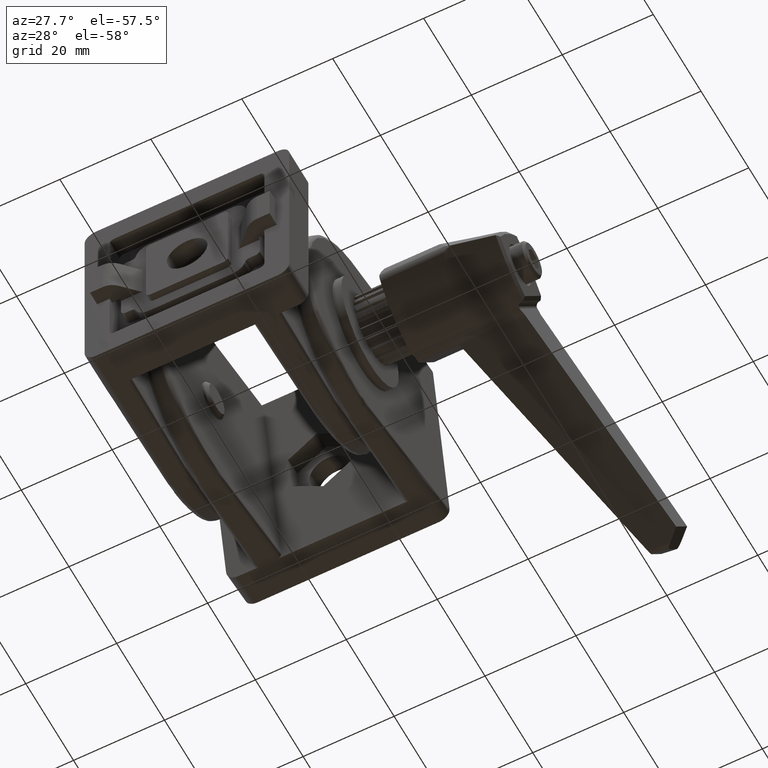
[diagram: clean part render]
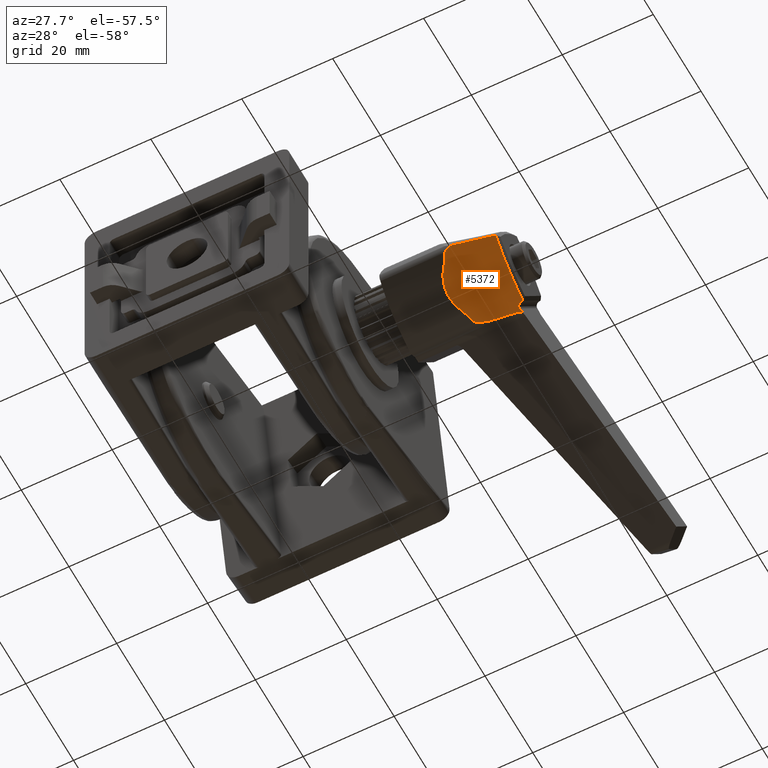
[diagram: same view with one face highlighted and labeled with its STEP entity id]
A machine part, auxiliary view. The second image highlights one B-rep face of the part: STEP entity #5372.
In plain terms, the highlighted conical surface has half-angle 12 deg.
Its self-contained STEP definition (entity closure, byte-faithful):
#477=LINE('',#9918,#908);
#908=VECTOR('',#7276,0.0146319005266277);
#1099=CONICAL_SURFACE('',#5898,33.99,12.0000000000001);
#1172=ELLIPSE('',#5896,31.8731235747589,31.0202850800713);
#1174=ELLIPSE('',#5901,38.5203805296889,29.4891679345241);
#1533=FACE_OUTER_BOUND('',#1862,.T.);
#1862=EDGE_LOOP('',(#4874,#4875,#4876,#4877,#4878,#4879,#4880,#4881,#4882,
#4883,#4884,#4885,#4886,#4887));
#1975=(
BOUNDED_CURVE()
B_SPLINE_CURVE(2,(#10073,#10074,#10075),.UNSPECIFIED.,.F.,.F.)
B_SPLINE_CURVE_WITH_KNOTS((3,3),(1.53763830239144,1.88072087559455),
 .UNSPECIFIED.)
CURVE()
GEOMETRIC_REPRESENTATION_ITEM()
RATIONAL_B_SPLINE_CURVE((1.04654044827924,1.04884496566682,1.04986089987338))
REPRESENTATION_ITEM('')
);
#1976=(
BOUNDED_CURVE()
B_SPLINE_CURVE(2,(#10092,#10093,#10094),.UNSPECIFIED.,.F.,.F.)
B_SPLINE_CURVE_WITH_KNOTS((3,3),(2.42170158514446,2.76478415834744),
 .UNSPECIFIED.)
CURVE()
GEOMETRIC_REPRESENTATION_ITEM()
RATIONAL_B_SPLINE_CURVE((1.04986089987338,1.04884496566682,1.04654044827924))
REPRESENTATION_ITEM('')
);
#2200=CIRCLE('',#5899,30.3068748348297);
#2201=CIRCLE('',#5900,1611.64966540959);
#2235=B_SPLINE_CURVE_WITH_KNOTS('',3,(#10021,#10022,#10023,#10024,#10025,
#10026,#10027,#10028,#10029,#10030,#10031,#10032),.UNSPECIFIED.,.F.,.F.,
(4,2,2,2,2,4),(0.127745565673378,0.14327594049104,0.177998647508925,0.21272135452681,
0.247048233733336,0.2672710280666),.UNSPECIFIED.);
#2236=B_SPLINE_CURVE_WITH_KNOTS('',3,(#10037,#10038,#10039,#10040),
 .UNSPECIFIED.,.F.,.F.,(4,4),(2.0715044188612E-7,0.00053614271093249),
 .UNSPECIFIED.);
#2237=B_SPLINE_CURVE_WITH_KNOTS('',3,(#10057,#10058,#10059,#10060),
 .UNSPECIFIED.,.F.,.F.,(4,4),(-1.90518107225298,-1.08168540035583),
 .UNSPECIFIED.);
#2238=B_SPLINE_CURVE_WITH_KNOTS('',3,(#10062,#10063,#10064,#10065,#10066,
#10067,#10068,#10069,#10070,#10071),.UNSPECIFIED.,.F.,.F.,(4,2,2,2,4),(-1.0140742382486,
-1.00783335760039,-0.989094278958693,-0.9516161216753,-0.838162052898651),
 .UNSPECIFIED.);
#2239=B_SPLINE_CURVE_WITH_KNOTS('',3,(#10077,#10078,#10079,#10080,#10081,
#10082,#10083,#10084,#10085,#10086,#10087,#10088,#10089,#10090),
 .UNSPECIFIED.,.F.,.F.,(4,2,2,2,2,2,4),(-3.65799650815023,-3.59657656243432,
-3.36478179025589,-3.13298701807746,-2.90119224589903,-2.6693974737206,
-2.60797752800479),.UNSPECIFIED.);
#2240=B_SPLINE_CURVE_WITH_KNOTS('',3,(#10096,#10097,#10098,#10099,#10100,
#10101,#10102,#10103,#10104,#10105,#10106,#10107,#10108,#10109),
 .UNSPECIFIED.,.F.,.F.,(4,2,2,2,2,2,4),(-1.55089683986106,-1.36269491528464,
-1.23211183304676,-1.10152875080887,-1.06405059352548,-1.04531151488378,
-1.03907063423557),.UNSPECIFIED.);
#2241=B_SPLINE_CURVE_WITH_KNOTS('',3,(#10112,#10113,#10114,#10115,#10116,
#10117,#10118,#10119),.UNSPECIFIED.,.F.,.F.,(4,2,2,4),(0.359268737981897,
0.435645626085089,0.580860834780119,0.611465302432712),.UNSPECIFIED.);
#2719=VERTEX_POINT('',#9915);
#2720=VERTEX_POINT('',#9917);
#2734=VERTEX_POINT('',#10018);
#2735=VERTEX_POINT('',#10020);
#2736=VERTEX_POINT('',#10035);
#2738=VERTEX_POINT('',#10044);
#2742=VERTEX_POINT('',#10054);
#2743=VERTEX_POINT('',#10056);
#2744=VERTEX_POINT('',#10061);
#2745=VERTEX_POINT('',#10072);
#2746=VERTEX_POINT('',#10076);
#2747=VERTEX_POINT('',#10091);
#2748=VERTEX_POINT('',#10095);
#2749=VERTEX_POINT('',#10110);
#3464=EDGE_CURVE('',#2719,#2720,#477,.T.);
#3482=EDGE_CURVE('',#2735,#2734,#2235,.T.);
#3485=EDGE_CURVE('',#2736,#2734,#2236,.T.);
#3487=EDGE_CURVE('',#2735,#2738,#1172,.F.);
#3492=EDGE_CURVE('',#2720,#2742,#2200,.T.);
#3493=EDGE_CURVE('',#2743,#2719,#2237,.T.);
#3494=EDGE_CURVE('',#2744,#2743,#2238,.T.);
#3495=EDGE_CURVE('',#2745,#2744,#1975,.T.);
#3496=EDGE_CURVE('',#2746,#2745,#2239,.T.);
#3497=EDGE_CURVE('',#2747,#2746,#1976,.T.);
#3498=EDGE_CURVE('',#2748,#2747,#2240,.T.);
#3499=EDGE_CURVE('',#2749,#2748,#2201,.T.);
#3500=EDGE_CURVE('',#2749,#2738,#2241,.T.);
#3501=EDGE_CURVE('',#2742,#2736,#1174,.F.);
#4874=ORIENTED_EDGE('',*,*,#3492,.F.);
#4875=ORIENTED_EDGE('',*,*,#3464,.F.);
#4876=ORIENTED_EDGE('',*,*,#3493,.F.);
#4877=ORIENTED_EDGE('',*,*,#3494,.F.);
#4878=ORIENTED_EDGE('',*,*,#3495,.F.);
#4879=ORIENTED_EDGE('',*,*,#3496,.F.);
#4880=ORIENTED_EDGE('',*,*,#3497,.F.);
#4881=ORIENTED_EDGE('',*,*,#3498,.F.);
#4882=ORIENTED_EDGE('',*,*,#3499,.F.);
#4883=ORIENTED_EDGE('',*,*,#3500,.T.);
#4884=ORIENTED_EDGE('',*,*,#3487,.F.);
#4885=ORIENTED_EDGE('',*,*,#3482,.T.);
#4886=ORIENTED_EDGE('',*,*,#3485,.F.);
#4887=ORIENTED_EDGE('',*,*,#3501,.F.);
#5372=ADVANCED_FACE('',(#1533),#1099,.T.);
#5896=AXIS2_PLACEMENT_3D('',#10045,#7306,#7307);
#5898=AXIS2_PLACEMENT_3D('',#10053,#7313,#7314);
#5899=AXIS2_PLACEMENT_3D('',#10055,#7315,#7316);
#5900=AXIS2_PLACEMENT_3D('',#10111,#7317,#7318);
#5901=AXIS2_PLACEMENT_3D('',#10120,#7319,#7320);
#7276=DIRECTION('',(0.787364891017228,0.615094394853813,0.0414175544045113));
#7306=DIRECTION('center_axis',(0.224758296295466,-0.974414546405358,0.));
#7307=DIRECTION('ref_axis',(-0.974414546405358,-0.224758296295466,-3.09035966998074E-15));
#7313=DIRECTION('center_axis',(0.,-1.,0.));
#7314=DIRECTION('ref_axis',(0.,0.,-1.));
#7315=DIRECTION('center_axis',(0.,1.,0.));
#7316=DIRECTION('ref_axis',(0.,0.,1.));
#7317=DIRECTION('center_axis',(0.961043175724668,-3.09211153416964E-12,
0.276398289417724));
#7318=DIRECTION('ref_axis',(-0.268101861689075,0.243169565356635,0.932196306709653));
#7319=DIRECTION('center_axis',(-0.629320391049839,-0.77714596145697,-8.88909025565188E-32));
#7320=DIRECTION('ref_axis',(0.77714596145697,-0.629320391049839,-1.10370486042312E-15));
#9915=CARTESIAN_POINT('',(-6.59453735489223,32.4141114395597,6.58267563356201));
#9917=CARTESIAN_POINT('',(-6.58301671012871,32.4231114395597,6.5832816510981));
#9918=CARTESIAN_POINT('',(-6.59453735489223,32.4141114395597,6.582675633562));
#10018=CARTESIAN_POINT('',(7.42998895362206,31.8956559805914,6.49762961849028));
#10020=CARTESIAN_POINT('',(8.51260426094841,31.2058034105625,6.35630758761401));
#10021=CARTESIAN_POINT('Ctrl Pts',(8.51260426094841,31.2058034105625,6.35630758761399));
#10022=CARTESIAN_POINT('Ctrl Pts',(8.46259481810633,31.194268240841,6.37336197053668));
#10023=CARTESIAN_POINT('Ctrl Pts',(8.41210964374347,31.1871748848489,6.38942634615581));
#10024=CARTESIAN_POINT('Ctrl Pts',(8.25179170151223,31.1778531244503,6.43708087028909));
#10025=CARTESIAN_POINT('Ctrl Pts',(8.13065823311183,31.1926882647987,6.46749843637607));
#10026=CARTESIAN_POINT('Ctrl Pts',(7.90272149568255,31.2713591832951,6.51213324857755));
#10027=CARTESIAN_POINT('Ctrl Pts',(7.7959437150397,31.3352600574594,6.52636589287717));
#10028=CARTESIAN_POINT('Ctrl Pts',(7.62469750102806,31.4886536354191,6.53737515979533));
#10029=CARTESIAN_POINT('Ctrl Pts',(7.54950901518221,31.5870842536055,6.53500751918372));
#10030=CARTESIAN_POINT('Ctrl Pts',(7.46713818767566,31.7601464499087,6.51797241212457));
#10031=CARTESIAN_POINT('Ctrl Pts',(7.44439411789845,31.8278850110046,6.50885629418703));
#10032=CARTESIAN_POINT('Ctrl Pts',(7.42998895362204,31.8956559805914,6.49762961849026));
#10035=CARTESIAN_POINT('',(7.32000040044636,32.4131114395597,6.41178504293343));
#10037=CARTESIAN_POINT('Ctrl Pts',(7.32000040044636,32.4131114395597,6.41178504293343));
#10038=CARTESIAN_POINT('Ctrl Pts',(7.3566618778405,32.2406327491533,6.44044058704895));
#10039=CARTESIAN_POINT('Ctrl Pts',(7.39332473473779,32.0681475686948,6.46905533171429));
#10040=CARTESIAN_POINT('Ctrl Pts',(7.42998895362206,31.8956559805914,6.49762961849028));
#10044=CARTESIAN_POINT('',(9.20710960608161,31.3659978973095,6.11023833602705));
#10045=CARTESIAN_POINT('Origin',(-1.52270184596337,28.8910613824251,-23.));
#10053=CARTESIAN_POINT('Origin',(0.,15.0953698905216,-23.));
#10054=CARTESIAN_POINT('',(7.30765142888102,32.4231114395597,6.4126655175624));
#10055=CARTESIAN_POINT('Origin',(0.,32.4231114395597,-23.));
#10056=CARTESIAN_POINT('',(-8.13800979101975,23.6497522696887,8.12541910019155));
#10057=CARTESIAN_POINT('Ctrl Pts',(-8.13800979101975,23.6497522696887,8.12541910019154));
#10058=CARTESIAN_POINT('Ctrl Pts',(-7.62808473143791,26.5764746991409,7.61573746871879));
#10059=CARTESIAN_POINT('Ctrl Pts',(-7.1101904586519,29.5195430134139,7.0980879835995));
#10060=CARTESIAN_POINT('Ctrl Pts',(-6.59453735489224,32.4141114395597,6.58267563356199));
#10061=CARTESIAN_POINT('',(-7.24016140570836,22.2240588453987,8.65737632033215));
#10062=CARTESIAN_POINT('Ctrl Pts',(-7.24016140570835,22.2240588453987,8.65737632033215));
#10063=CARTESIAN_POINT('Ctrl Pts',(-7.25919046629446,22.2291990077605,8.6519035175192));
#10064=CARTESIAN_POINT('Ctrl Pts',(-7.27787981825127,22.2355207660976,8.64623220621372));
#10065=CARTESIAN_POINT('Ctrl Pts',(-7.35125519654425,22.2650798038823,8.62286425685562));
#10066=CARTESIAN_POINT('Ctrl Pts',(-7.40305346321064,22.2969075083554,8.6038191858738));
#10067=CARTESIAN_POINT('Ctrl Pts',(-7.54758866384499,22.4112931651433,8.54474001144089));
#10068=CARTESIAN_POINT('Ctrl Pts',(-7.62956514446385,22.5128528794796,8.50271978486236));
#10069=CARTESIAN_POINT('Ctrl Pts',(-7.89601480776044,22.9114721709378,8.35032453012354));
#10070=CARTESIAN_POINT('Ctrl Pts',(-8.02727962719164,23.273171607869,8.23710587661521));
#10071=CARTESIAN_POINT('Ctrl Pts',(-8.13800979101886,23.649752269689,8.12541910019171));
#10072=CARTESIAN_POINT('',(-5.04346605303278,21.2553093776754,9.28915109717477));
#10073=CARTESIAN_POINT('Ctrl Pts',(-5.04346605308823,21.2553093777092,9.28915109715882));
#10074=CARTESIAN_POINT('Ctrl Pts',(-6.14528489484926,21.9283089313949,8.97226539335528));
#10075=CARTESIAN_POINT('Ctrl Pts',(-7.24016140570841,22.2240588453987,8.65737632033214));
#10076=CARTESIAN_POINT('',(5.0434660530336,21.2553093776759,9.28915109717454));
#10077=CARTESIAN_POINT('Ctrl Pts',(5.04346605303372,21.2553093776757,9.28915109717454));
#10078=CARTESIAN_POINT('Ctrl Pts',(4.86455579442066,21.1460295944351,9.34060611053015));
#10079=CARTESIAN_POINT('Ctrl Pts',(4.68269169017451,21.0413631016703,9.38994384343621));
#10080=CARTESIAN_POINT('Ctrl Pts',(3.8016133019108,20.566361874978,9.61405693599633));
#10081=CARTESIAN_POINT('Ctrl Pts',(3.06482989295744,20.2648369050503,9.75695956681099));
#10082=CARTESIAN_POINT('Ctrl Pts',(1.55040896281438,19.8579527521532,9.95003100706217));
#10083=CARTESIAN_POINT('Ctrl Pts',(0.772649240594743,19.752953698905,10.));
#10084=CARTESIAN_POINT('Ctrl Pts',(-0.772649240594781,19.752953698905,10.));
#10085=CARTESIAN_POINT('Ctrl Pts',(-1.55040896281442,19.8579527521532,9.95003100706216));
#10086=CARTESIAN_POINT('Ctrl Pts',(-3.06482989295748,20.2648369050503,9.75695956681099));
#10087=CARTESIAN_POINT('Ctrl Pts',(-3.80161330191085,20.566361874978,9.61405693599632));
#10088=CARTESIAN_POINT('Ctrl Pts',(-4.68269169017426,21.0413631016701,9.38994384343627));
#10089=CARTESIAN_POINT('Ctrl Pts',(-4.86455579442012,21.1460295944348,9.3406061105303));
#10090=CARTESIAN_POINT('Ctrl Pts',(-5.0434660530329,21.2553093776752,9.28915109717478));
#10091=CARTESIAN_POINT('',(7.24016140570834,22.2240588453987,8.65737632033216));
#10092=CARTESIAN_POINT('Ctrl Pts',(7.24016140570835,22.2240588453987,8.65737632033215));
#10093=CARTESIAN_POINT('Ctrl Pts',(6.14528489484963,21.928308931395,8.97226539335517));
#10094=CARTESIAN_POINT('Ctrl Pts',(5.04346605308904,21.2553093777097,9.28915109715858));
#10095=CARTESIAN_POINT('',(8.65737632033215,27.0215697070129,7.24016140570836));
#10096=CARTESIAN_POINT('Ctrl Pts',(8.65737632033215,27.0215697070129,7.24016140570835));
#10097=CARTESIAN_POINT('Ctrl Pts',(8.61202170723363,26.3670359336847,7.397860433064));
#10098=CARTESIAN_POINT('Ctrl Pts',(8.5462450807166,25.7301289929771,7.55717274945999));
#10099=CARTESIAN_POINT('Ctrl Pts',(8.38959218896825,24.713657617372,7.82438061355341));
#10100=CARTESIAN_POINT('Ctrl Pts',(8.30448202453837,24.2598898966233,7.9475075284699));
#10101=CARTESIAN_POINT('Ctrl Pts',(8.06814554028987,23.3828674934256,8.20254464414874));
#10102=CARTESIAN_POINT('Ctrl Pts',(7.92625367714234,22.9567107219586,8.33302948029891));
#10103=CARTESIAN_POINT('Ctrl Pts',(7.62956514446385,22.5128528794796,8.50271978486236));
#10104=CARTESIAN_POINT('Ctrl Pts',(7.54758866384499,22.4112931651434,8.54474001144089));
#10105=CARTESIAN_POINT('Ctrl Pts',(7.40305346321065,22.2969075083554,8.6038191858738));
#10106=CARTESIAN_POINT('Ctrl Pts',(7.35125519654426,22.2650798038823,8.62286425685562));
#10107=CARTESIAN_POINT('Ctrl Pts',(7.27787981825127,22.2355207660976,8.64623220621372));
#10108=CARTESIAN_POINT('Ctrl Pts',(7.25919046629446,22.2291990077605,8.6519035175192));
#10109=CARTESIAN_POINT('Ctrl Pts',(7.24016140570833,22.2240588453987,8.65737632033215));
#10110=CARTESIAN_POINT('',(8.78517520318019,28.8613439894804,6.79580176629317));
#10111=CARTESIAN_POINT('Origin',(440.743652007219,-364.882578937805,-1495.13370439896));
#10112=CARTESIAN_POINT('Ctrl Pts',(8.78517520318021,28.8613439894804,6.79580176629315));
#10113=CARTESIAN_POINT('Ctrl Pts',(8.80377573324185,29.1284437393012,6.73112729773028));
#10114=CARTESIAN_POINT('Ctrl Pts',(8.82730868757344,29.3929873604745,6.6655025511446));
#10115=CARTESIAN_POINT('Ctrl Pts',(8.9135860664949,30.1476441234055,6.47225041929789));
#10116=CARTESIAN_POINT('Ctrl Pts',(8.98865751958741,30.6268844182662,6.34322108564228));
#10117=CARTESIAN_POINT('Ctrl Pts',(9.14018805276865,31.1676166318064,6.17553076395725));
#10118=CARTESIAN_POINT('Ctrl Pts',(9.17104604787401,31.2672362408165,6.1436620834562));
#10119=CARTESIAN_POINT('Ctrl Pts',(9.20710960608285,31.3659978973089,6.11023833602673));
#10120=CARTESIAN_POINT('Origin',(5.15272409822245,34.1681371846226,-23.));